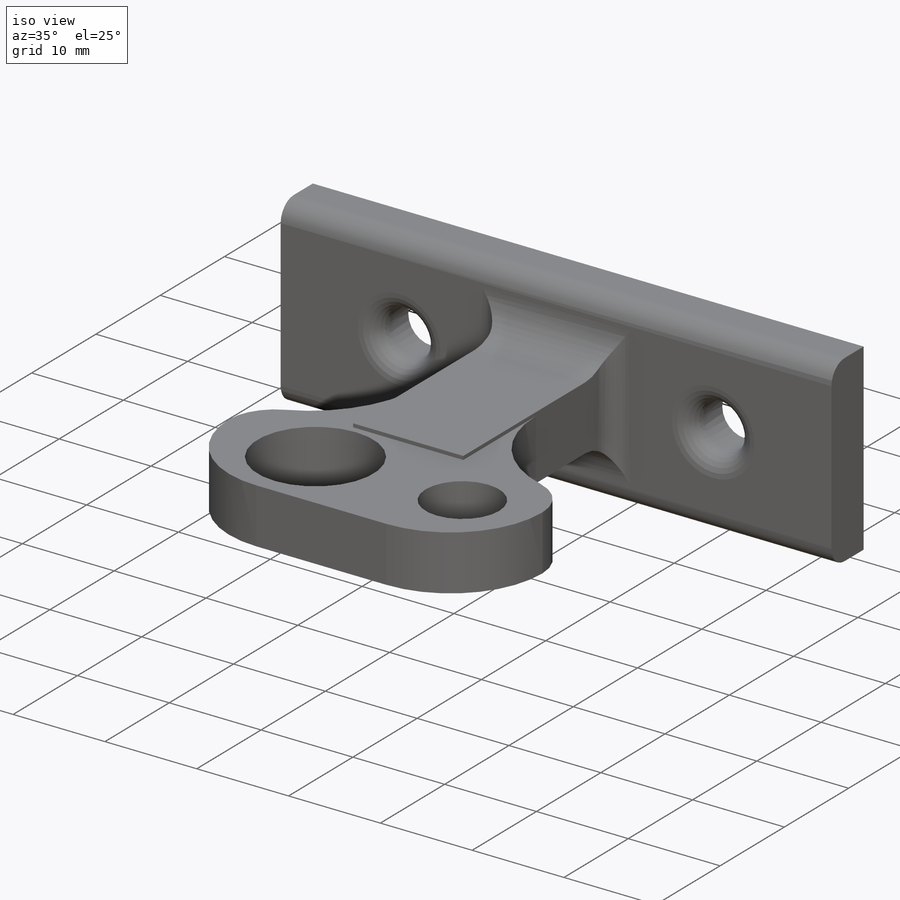
[diagram: iso view]
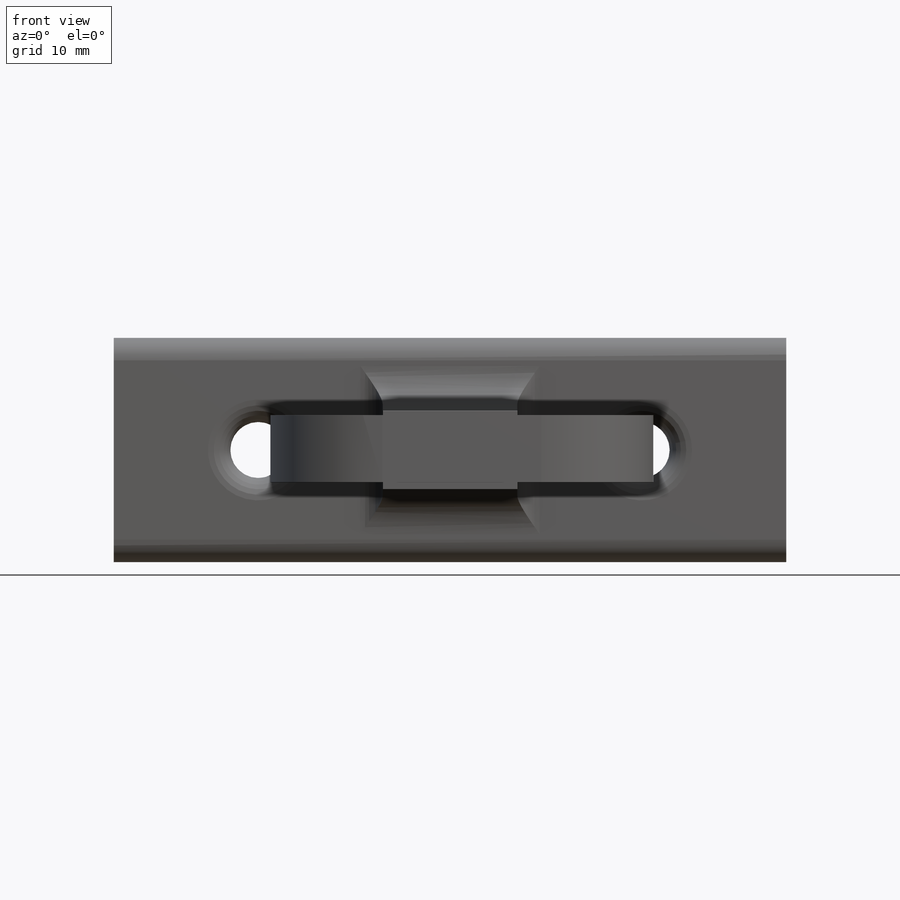
[diagram: front view]
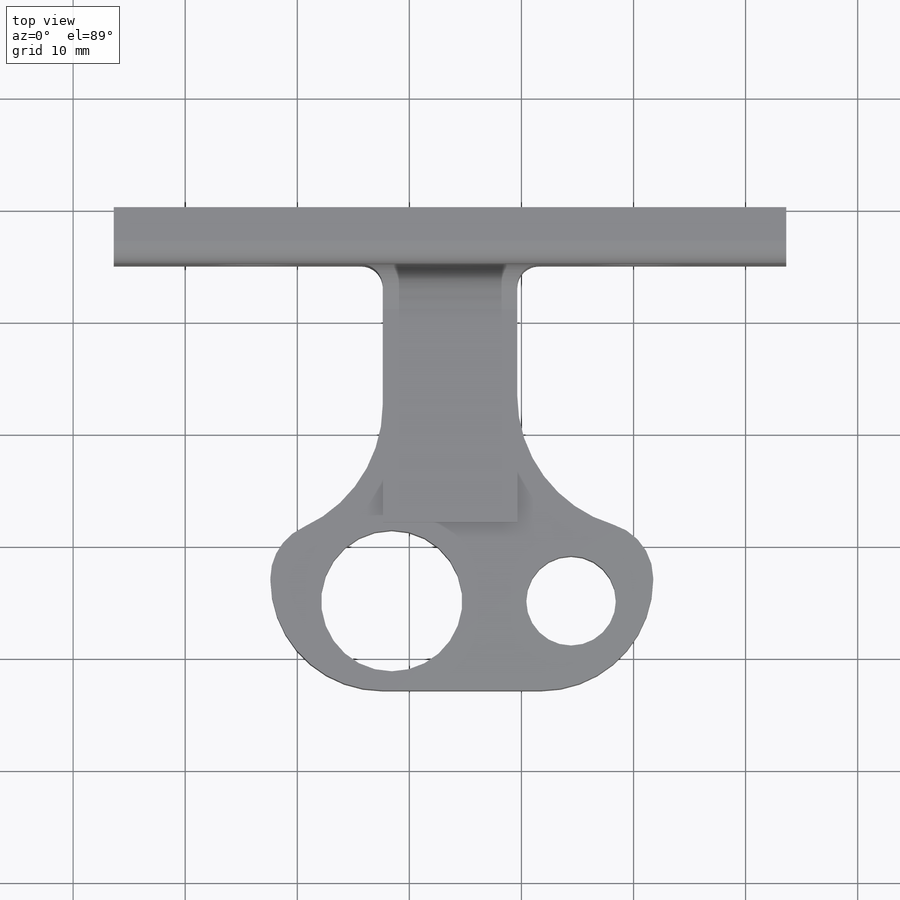
[diagram: top view]
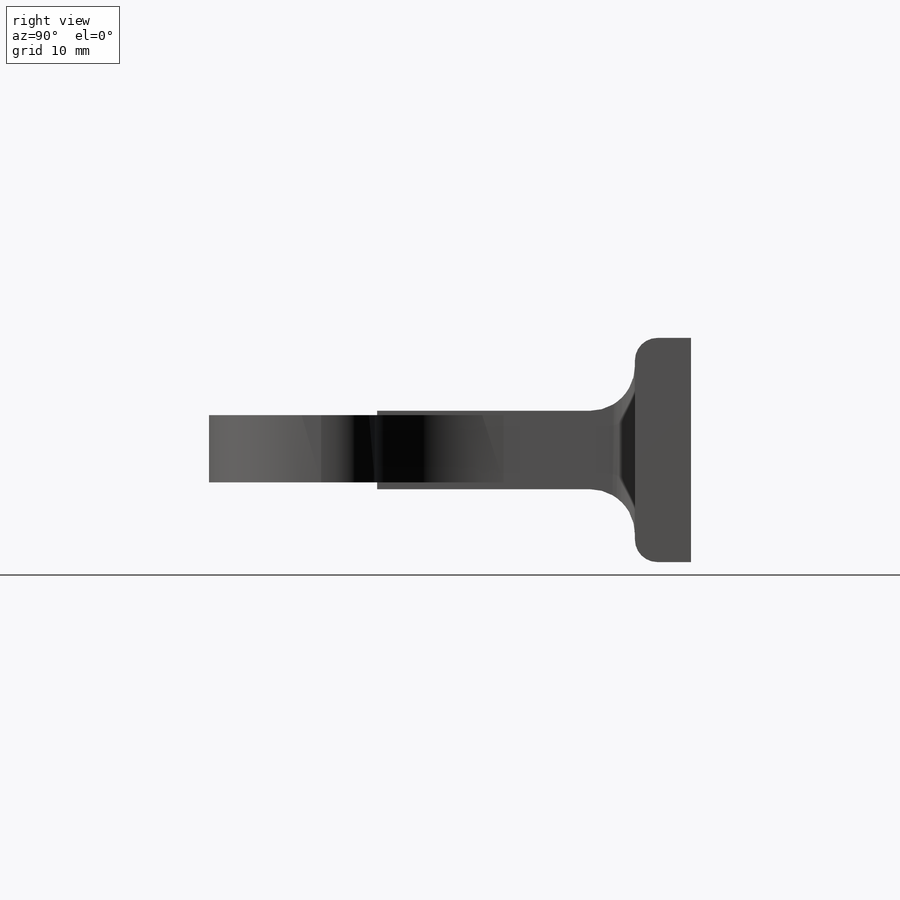
[diagram: right view]
SOLIDWORKS PART (.sldprt)
format: sldprt  version: not decoded by parser v0  size: 323,584 bytes
history: native  units: mm
features: fillet x14, plane x3, sketch x3, extrude x3, material x1 (+10 scaffold rows collapsed)
feature tree (34):
  scaffold x10  (default folders/planes/origin — collapsed)
  material  "Material <não especificado>"
  plane  "Plano frontal"
  plane  "Plano superior"
  plane  "Plano direito"
  sketch  "Esboço1"  dims[D5=5.0mm D6=5.0mm D1=60.0mm D2=20.0mm D3=17.1mm D4=17.1mm]
  extrude  "Ressalto-extrusão2"  Depth=5mm
  sketch  "Esboço2"  dims[D1=7.0mm D2=3.5mm D3=12.0mm D4=6.0mm]
  extrude  "Ressalto-extrusão3"  Depth=28mm
  sketch  "Esboço3"  dims[c1.D2=12.6mm c1.D6=8.0mm c1.D1=50.0mm c2.D2=25.0mm c2.D3=15.0mm c2.D4=30.0mm c2.D5=7.5mm c2.D7=35.0mm c2.D1=16.0mm c3.D3=0.0mm c3.D5=22.0mm]
  extrude  "Ressalto-extrusão4"  Depth=3mm
  fillet  "Filete1"  Radius=10mm
  fillet  "Filete2"  Radius=10mm
  fillet  "Filete5"  Radius=5mm
  fillet  "Filete7"  Radius=5mm
  fillet  "Filete9"  Radius=2mm
  fillet  "Filete10"  Radius=2mm
  fillet  "Filete13"  Radius=12mm
  fillet  "Filete14"  Radius=12mm
  fillet  "Filete15"  Radius=4mm
  fillet  "Filete16"  Radius=4mm
  fillet  "Filete17"  Radius=2mm
  fillet  "Filete18"  Radius=2mm
  fillet  "Filete19"  Radius=2mm
  fillet  "Filete20"  Radius=2mm
decode coverage: 20 of 20 modeling features carry decoded parameters
note: suppression state not decoded; provenance and decode notes live in map.json
